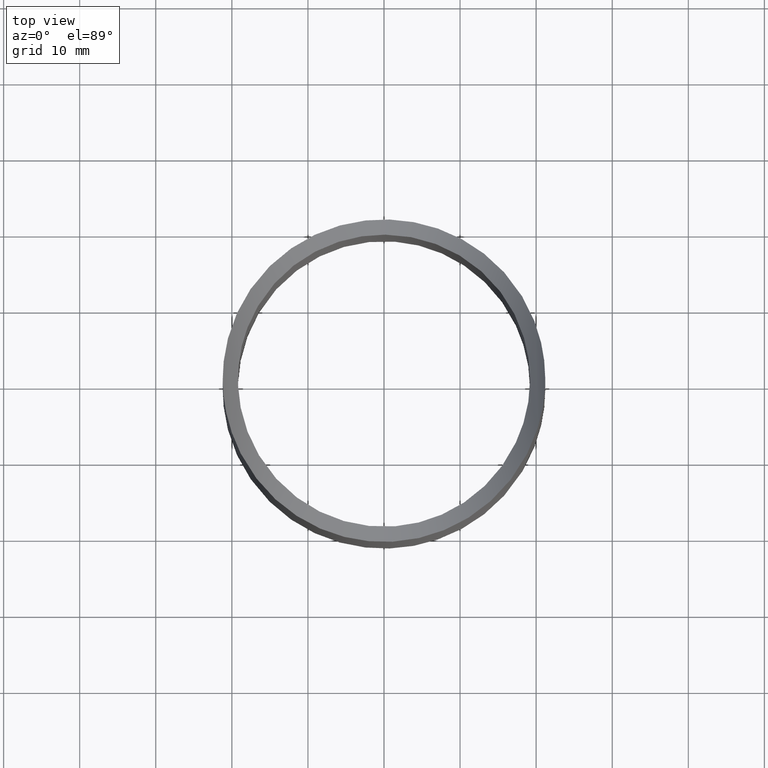
[diagram: clean part render]
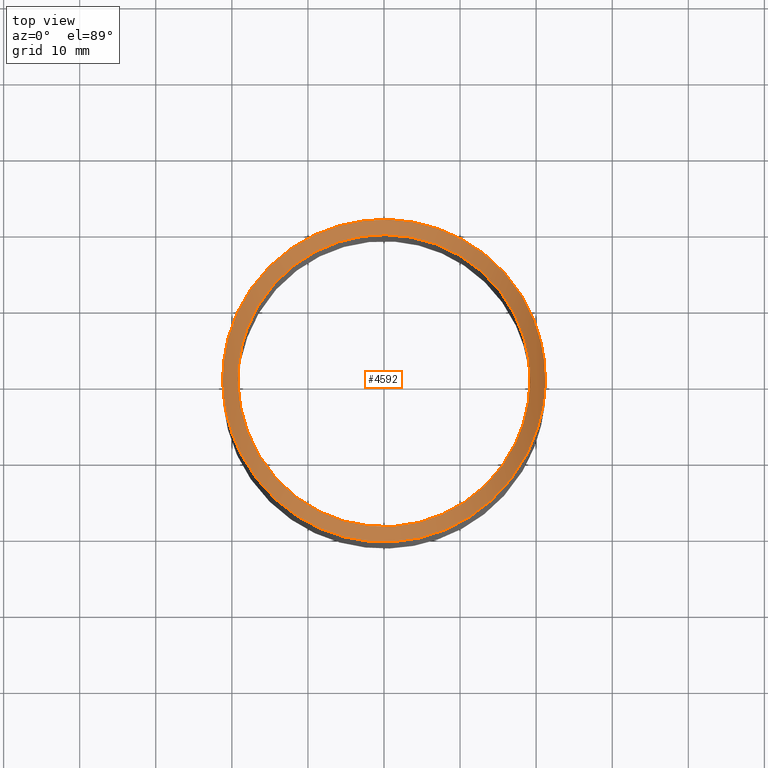
[diagram: same view with one face highlighted and labeled with its STEP entity id]
A machine part, top view. The second image highlights one B-rep face of the part: STEP entity #4592.
In plain terms, the highlighted cylindrical surface (partial cylindrical patch) has radius 24.15 mm, axis along (-0, 1, -0).
Its self-contained STEP definition (entity closure, byte-faithful):
#163 = CARTESIAN_POINT ( 'NONE',  ( -3.255958080950190237, -18.92481743305896202, 25.21821653817354303 ) ) ;
#204 = CARTESIAN_POINT ( 'NONE',  ( 6.482609521754965520, -18.08407111452975258, 25.87768013971219361 ) ) ;
#254 = CARTESIAN_POINT ( 'NONE',  ( -15.26203645178457613, -11.71076320460980469, 30.41280303271717145 ) ) ;
#270 = CARTESIAN_POINT ( 'NONE',  ( -18.92877723315593741, 9.635848647165380143, 34.12689449167132949 ) ) ;
#298 = CARTESIAN_POINT ( 'NONE',  ( 13.28753157040789468, -13.87213893877379434, 28.97772554639307074 ) ) ;
#311 = CARTESIAN_POINT ( 'NONE',  ( -18.30954737960177781, 10.76482312935650754, 33.36712507464898181 ) ) ;
#335 = CARTESIAN_POINT ( 'NONE',  ( 17.90880337583956461, -6.948946749652347599, 32.94444091350059978 ) ) ;
#381 = CARTESIAN_POINT ( 'NONE',  ( -13.29008748311628452, 13.86986159758600401, 28.97932688512530319 ) ) ;
#395 = CARTESIAN_POINT ( 'NONE',  ( -1.379351382647280300, 21.16843550293391374, 25.02773133158973096 ) ) ;
#427 = CARTESIAN_POINT ( 'NONE',  ( -2.718640566721775453, 19.01832373245417784, 25.14422486082669295 ) ) ;
#443 = CARTESIAN_POINT ( 'NONE',  ( 20.59421893871964571, 5.081957251331889580, 36.53320584653805270 ) ) ;
#477 = CARTESIAN_POINT ( 'NONE',  ( 13.25440064150450858, 13.90396366826683661, 28.95584296648186395 ) ) ;
#493 = CARTESIAN_POINT ( 'NONE',  ( -21.17139254519066682, -1.327900722634574704, 37.53032838118427605 ) ) ;
#520 = CARTESIAN_POINT ( 'NONE',  ( 16.58456793229646564, 9.693189742631007633, 31.59046298775079720 ) ) ;
#537 = CARTESIAN_POINT ( 'NONE',  ( 9.776366241319019323, -18.82411369512748323, 27.05708157620545151 ) ) ;
#570 = CARTESIAN_POINT ( 'NONE',  ( 19.02837230249243561, 2.644166875896658553, 34.27868836104758543 ) ) ;
#764 = CARTESIAN_POINT ( 'NONE',  ( -21.06282559943587884, -2.436221136448928792, 37.33537302850128015 ) ) ;
#806 = CARTESIAN_POINT ( 'NONE',  ( 11.57557648746820256, -17.77401718948303611, 27.94502558068056430 ) ) ;
#849 = CARTESIAN_POINT ( 'NONE',  ( 2.861955765926955664, -21.01963759934508147, 25.15820244223009894 ) ) ;
#1014 = CARTESIAN_POINT ( 'NONE',  ( 19.20000000000000995, -1.346712393426994447, 34.50136525132801779 ) ) ;
#1019 = CARTESIAN_POINT ( 'NONE',  ( 21.18705007545193908, -0.7651361944628329859, 37.55985221934160734 ) ) ;
#1196 = CARTESIAN_POINT ( 'NONE',  ( 11.43302474737128449, -15.43698605618202357, 27.87027088789773188 ) ) ;
#1245 = CARTESIAN_POINT ( 'NONE',  ( -13.25109797467948525, -13.90706630659891552, 28.95369606916847971 ) ) ;
#1291 = CARTESIAN_POINT ( 'NONE',  ( -18.49362913039033174, -5.198163359133904038, 33.61639585758521775 ) ) ;
#1304 = CARTESIAN_POINT ( 'NONE',  ( 21.04311487925438939, 2.600411042969253295, 37.30026941153323605 ) ) ;
#1332 = CARTESIAN_POINT ( 'NONE',  ( 7.090031377504277366, -17.85434781506717883, 26.05598190192093710 ) ) ;
#1351 = CARTESIAN_POINT ( 'NONE',  ( -16.04934571228516660, 13.91195018205657874, 31.06685218863818321 ) ) ;
#1360 = DIRECTION ( 'NONE',  ( 0.000000000000000000, 0.000000000000000000, 1.000000000000000000 ) ) ;
#1385 = CARTESIAN_POINT ( 'NONE',  ( 1.363781126240995123, -19.16317454119206332, 25.02930538705657426 ) ) ;
#1401 = CARTESIAN_POINT ( 'NONE',  ( 14.33064357019541823, 15.63693189086025370, 29.70180932424991838 ) ) ;
#1429 = CARTESIAN_POINT ( 'NONE',  ( -12.84493445951116719, 14.28329555711447263, 28.69225653415303512 ) ) ;
#1444 = CARTESIAN_POINT ( 'NONE',  ( -9.783719388593979716, 18.86114355684420474, 27.02669751896622685 ) ) ;
#1472 = CARTESIAN_POINT ( 'NONE',  ( 10.37756682919518880, 16.16549921756678998, 27.33601600772281870 ) ) ;
#1488 = CARTESIAN_POINT ( 'NONE',  ( 18.35738798289526841, 10.62389000726081711, 33.45083591808911905 ) ) ;
#1518 = CARTESIAN_POINT ( 'NONE',  ( 18.49976728379239788, 5.176419524179735276, 33.62371298614612414 ) ) ;
#1537 = CARTESIAN_POINT ( 'NONE',  ( -21.13600295169353060, 1.688561807819356719, 37.46692591776143644 ) ) ;
#1568 = CARTESIAN_POINT ( 'NONE',  ( 19.20000000000000995, 2.059984127722458425E-15, 34.50136525132801779 ) ) ;
#1583 = CARTESIAN_POINT ( 'NONE',  ( -3.875882088453081575, -20.84607472227184388, 25.31010850980709748 ) ) ;
#1612 = CARTESIAN_POINT ( 'NONE',  ( 1.267964607989610526, 19.16952229803326091, 25.02425750774572677 ) ) ;
#1794 = CARTESIAN_POINT ( 'NONE',  ( -1.646797548463641236, -21.14920743253038538, 25.04461009978417962 ) ) ;
#1834 = CARTESIAN_POINT ( 'NONE',  ( -21.19613358253339896, 0.5540781783344641553, 37.57647572910654787 ) ) ;
#1879 = CARTESIAN_POINT ( 'NONE',  ( -4.244829350413260372, -20.77400722764772922, 25.37311363479035009 ) ) ;
#2235 = CARTESIAN_POINT ( 'NONE',  ( 0.6982102987030192054, -19.19871781416463818, 25.00101937690090637 ) ) ;
#2279 = CARTESIAN_POINT ( 'NONE',  ( 5.251616885425025139, -18.47913348551918489, 25.56938045810047910 ) ) ;
#2324 = CARTESIAN_POINT ( 'NONE',  ( 11.91904472403094850, -15.06471645273509985, 28.13925289162920507 ) ) ;
#2341 = CARTESIAN_POINT ( 'NONE',  ( 9.307140707012017344, 19.06107999430647126, 26.85459706639172239 ) ) ;
#2372 = CARTESIAN_POINT ( 'NONE',  ( -5.199718337577949434, -18.52959265748502915, 25.53007122663376194 ) ) ;
#2420 = CARTESIAN_POINT ( 'NONE',  ( -19.16624718914798109, 1.314398449266423574, 34.45681745028024778 ) ) ;
#2436 = CARTESIAN_POINT ( 'NONE',  ( 20.81536095300337408, 4.035812705794620037, 36.90402268098335981 ) ) ;
#2461 = CARTESIAN_POINT ( 'NONE',  ( -11.92169305300573967, 15.06247350175057775, 28.14083905213118442 ) ) ;
#2479 = CARTESIAN_POINT ( 'NONE',  ( 19.77521756840306821, 7.669338922180779505, 35.28076052837283783 ) ) ;
#2510 = CARTESIAN_POINT ( 'NONE',  ( 0.6069152550272909341, 19.20186868889128817, 24.99851433671591394 ) ) ;
#2532 = CARTESIAN_POINT ( 'NONE',  ( -3.977638343958846079, 20.82676644983990144, 25.32699950302857772 ) ) ;
#2559 = CARTESIAN_POINT ( 'NONE',  ( -6.512315818788229294, 18.07344459770128609, 25.88594150482693124 ) ) ;
#2575 = CARTESIAN_POINT ( 'NONE',  ( -20.97635834696325929, 3.158545356204248922, 37.18151495239143856 ) ) ;
#2617 = CARTESIAN_POINT ( 'NONE',  ( 17.26894050692188287, -12.31449342644356726, 32.25960162156351174 ) ) ;
#2647 = B_SPLINE_CURVE_WITH_KNOTS ( 'NONE', 3,
 ( #9380, #1014, #5344, #10571, #12559, #8532, #3293, #10516, #335, #7501, #5428, #9566, #3343, #4421, #8445, #298, #7364, #2324, #1196, #6388, #11563, #1332, #204, #2279, #4332, #9480, #12514, #1385, #2235, #6338, #11608, #8395, #10476, #163, #9431, #2372, #7406, #11513, #5382, #12601, #6469, #4374, #10611, #3383, #1245, #6427, #254, #3470, #3424, #7453, #11647, #4473, #6519, #1291, #8494, #9520, #5474, #12651, #5515, #12696, #7542, #8574, #2420, #9615, #10652, #4513, #7578, #5555, #3519, #5641, #3598, #12826, #6562, #7627, #10874, #381, #1429, #2461, #11819, #9798, #7677, #12741, #2559, #11694, #3645, #6736, #427, #8659, #10737, #2649, #5602, #2510, #1612, #8617, #3558, #11779, #6695, #9657, #6645, #8791, #10784, #7724, #1472, #10693, #4645, #4552, #477, #10826, #11735, #5683, #520, #12774, #9704, #12908, #6606, #1518, #4599, #3685, #570, #8701, #9752, #1568 ),
 .UNSPECIFIED., .T., .F.,
 ( 4, 2, 2, 2, 2, 2, 2, 2, 2, 2, 2, 2, 2, 2, 2, 2, 2, 2, 2, 2, 2, 2, 2, 2, 2, 2, 2, 2, 2, 2, 2, 2, 2, 2, 2, 2, 2, 2, 2, 2, 2, 2, 2, 2, 2, 2, 2, 2, 2, 2, 2, 2, 2, 2, 2, 2, 2, 2, 2, 2, 4 ),
 ( 0.000000000000000000, 0.003974698482295022095, 0.004968373102868777619, 0.005962047723442533143, 0.007949396964590044190, 0.009936746205737555238, 0.01192409544688506629, 0.01589879392918008838, 0.01788614317032759943, 0.01987349241147511048, 0.02384819089377012563, 0.02583554013491763668, 0.02782288937606514773, 0.02981023861721265530, 0.03179758785836016982, 0.03378493709950767393, 0.03477861172008143292, 0.03577228634065519192, 0.03974698482295021401, 0.04173433406409772506, 0.04372168330524522917, 0.04570903254639275409, 0.04769638178754027208, 0.05167108026983530805, 0.05365842951098282604, 0.05564577875213034402, 0.05763312799327787589, 0.05962047723442540081, 0.06160782647557291880, 0.06260150109614667779, 0.06359517571672043679, 0.06558252495786795477, 0.06657619957844171377, 0.06756987419901545888, 0.07154457268131049485, 0.07353192192245801284, 0.07551927116360554471, 0.07949396964590058068, 0.08148131888704811254, 0.08346866812819564441, 0.08744336661049068038, 0.08943071585163821224, 0.09141806509278573023, 0.09340541433393324822, 0.09439908895450700721, 0.09539276357508076620, 0.09738011281622829807, 0.09837378743680205706, 0.09936746205737580218, 0.1033421605396708381, 0.1053295097808183423, 0.1073168590219658602, 0.1093042082631133782, 0.1112915575042608823, 0.1152662559865559183, 0.1172536052277034363, 0.1192409544688509404, 0.1212283037099984584, 0.1232156529511459625, 0.1252030021922934666, 0.1271903514334409846 ),
 .UNSPECIFIED. ) ;
#2649 = CARTESIAN_POINT ( 'NONE',  ( -0.7204800247264818713, 19.18937357302040425, 25.00845003320503679 ) ) ;
#2853 = CARTESIAN_POINT ( 'NONE',  ( -11.20650900769450686, -18.00919104853148411, 27.74720752538118163 ) ) ;
#2898 = CARTESIAN_POINT ( 'NONE',  ( 14.26758304632109109, -15.73462341832112088, 29.63000989669030005 ) ) ;
#2941 = CARTESIAN_POINT ( 'NONE',  ( 18.35259929000589096, -10.69178739157260871, 33.41716637868228190 ) ) ;
#3293 = CARTESIAN_POINT ( 'NONE',  ( 18.40551820009558526, -5.474938991681098877, 33.51413549127038749 ) ) ;
#3343 = CARTESIAN_POINT ( 'NONE',  ( 16.27824432263802379, -10.19867580380512173, 31.30522275899706841 ) ) ;
#3383 = CARTESIAN_POINT ( 'NONE',  ( -12.80720717478307158, -14.31733778815052105, 28.66848642564543326 ) ) ;
#3401 = CARTESIAN_POINT ( 'NONE',  ( 18.02703324573771582, 11.17478347359660873, 33.07151591960013803 ) ) ;
#3424 = CARTESIAN_POINT ( 'NONE',  ( -16.57788926204874258, -9.704533056861706086, 31.58416673208805392 ) ) ;
#3439 = CARTESIAN_POINT ( 'NONE',  ( 0.8570938160425972674, 21.19576360719491959, 25.00371889231641376 ) ) ;
#3470 = CARTESIAN_POINT ( 'NONE',  ( -16.26396012753206222, -10.22162090094121289, 31.29212911118361973 ) ) ;
#3519 = CARTESIAN_POINT ( 'NONE',  ( -18.15465230008537389, 6.368417433403480210, 33.20865288073045463 ) ) ;
#3531 = CARTESIAN_POINT ( 'NONE',  ( 13.32389046653464426, 16.50317929767390623, 28.99873680058485448 ) ) ;
#3558 = CARTESIAN_POINT ( 'NONE',  ( 2.584810328228691390, 19.02811074316160500, 25.13645067859325977 ) ) ;
#3574 = CARTESIAN_POINT ( 'NONE',  ( -14.20856944367890229, 15.74784103867825991, 29.61246971191928168 ) ) ;
#3598 = CARTESIAN_POINT ( 'NONE',  ( -17.16841745299955591, 8.616805603504106514, 32.16090196336465112 ) ) ;
#3617 = CARTESIAN_POINT ( 'NONE',  ( 20.29439568384519177, -6.139549580194639589, 36.05817013806716886 ) ) ;
#3645 = CARTESIAN_POINT ( 'NONE',  ( -4.651210577919512978, 18.63960173529629216, 25.44324617549107970 ) ) ;
#3660 = CARTESIAN_POINT ( 'NONE',  ( -3.134448869397676418, -20.97037251875283204, 25.20134411886764525 ) ) ;
#3685 = CARTESIAN_POINT ( 'NONE',  ( 18.92773479330212538, 3.286046076691218065, 34.14975218828460157 ) ) ;
#3883 = CARTESIAN_POINT ( 'NONE',  ( -21.01685719160357735, -2.804839704732406069, 37.25350971382740539 ) ) ;
#3934 = CARTESIAN_POINT ( 'NONE',  ( -17.38037110746649461, -12.15634875530774472, 32.37456891561282646 ) ) ;
#3976 = CARTESIAN_POINT ( 'NONE',  ( -7.428390811851920184, -19.90728424505650196, 26.12846359776445837 ) ) ;
#4332 = CARTESIAN_POINT ( 'NONE',  ( 4.624399148999452258, -18.64624036565931320, 25.43802375864946086 ) ) ;
#4374 = CARTESIAN_POINT ( 'NONE',  ( -11.38903002107075046, -15.46952057081156084, 27.84664880780972851 ) ) ;
#4421 = CARTESIAN_POINT ( 'NONE',  ( 15.28384674677678312, -11.68164946124940862, 30.43087126346166826 ) ) ;
#4473 = CARTESIAN_POINT ( 'NONE',  ( -17.89847223302856349, -6.975515949018377349, 32.93300996239963041 ) ) ;
#4513 = CARTESIAN_POINT ( 'NONE',  ( -18.92239781040531810, 3.269621082421527714, 34.14426862029864651 ) ) ;
#4528 = CARTESIAN_POINT ( 'NONE',  ( -2.875685406383693188, 21.00737035516542051, 25.16893772533690310 ) ) ;
#4552 = CARTESIAN_POINT ( 'NONE',  ( 12.80958895537919595, 14.31524180210327835, 28.66995730333042758 ) ) ;
#4568 = CARTESIAN_POINT ( 'NONE',  ( 21.19999999999999218, -1.165517335421917267E-15, 37.58356148159685262 ) ) ;
#4592 = ADVANCED_FACE ( 'NONE', ( #11759, #9501 ), #7558, .F. ) ;
#4599 = CARTESIAN_POINT ( 'NONE',  ( 18.66408245944930755, 4.550743804104329548, 33.82294533299602080 ) ) ;
#4615 = CARTESIAN_POINT ( 'NONE',  ( -14.68694656133646248, 15.30210980942055699, 29.97042990981162802 ) ) ;
#4616 = ORIENTED_EDGE ( 'NONE', *, *, #7691, .T. ) ;
#4645 = CARTESIAN_POINT ( 'NONE',  ( 11.87555162268125741, 15.09910562634391518, 28.11457769094676351 ) ) ;
#4664 = CARTESIAN_POINT ( 'NONE',  ( -20.84335338306961205, -3.888697776966783426, 36.95177541651901265 ) ) ;
#4714 = CARTESIAN_POINT ( 'NONE',  ( 9.146863275391043047, -19.13856882639603540, 26.78829395330530261 ) ) ;
#4935 = CARTESIAN_POINT ( 'NONE',  ( -20.45541735194242960, -5.611173856344452204, 36.30723599468177554 ) ) ;
#4985 = CARTESIAN_POINT ( 'NONE',  ( 10.99019997192858256, -18.14221865893225427, 27.63512407793474068 ) ) ;
#5027 = CARTESIAN_POINT ( 'NONE',  ( -18.43835679299217034, -10.54151119859166208, 33.51897155093636371 ) ) ;
#5201 = CARTESIAN_POINT ( 'NONE',  ( 20.65678568497506618, -4.781809977681583668, 36.63836350674345255 ) ) ;
#5344 = CARTESIAN_POINT ( 'NONE',  ( 19.06031456348139486, -2.650868228963062290, 34.31406826229878249 ) ) ;
#5382 = CARTESIAN_POINT ( 'NONE',  ( -8.760153950930892108, -17.09650181637034549, 26.63704350349036787 ) ) ;
#5428 = CARTESIAN_POINT ( 'NONE',  ( 17.16719019093399723, -8.619411775009757193, 32.15962207457139499 ) ) ;
#5474 = CARTESIAN_POINT ( 'NONE',  ( -19.02529710796761719, -2.666946167577797233, 34.27474230769715291 ) ) ;
#5488 = CARTESIAN_POINT ( 'NONE',  ( 11.70097173117910216, 17.69122308532080368, 28.01436057573138072 ) ) ;
#5515 = CARTESIAN_POINT ( 'NONE',  ( -19.15521536426648197, -1.352689336175176615, 34.44282226099616651 ) ) ;
#5523 = CARTESIAN_POINT ( 'NONE',  ( -5.059804035448612680, 20.60052458868202407, 25.52461701857541598 ) ) ;
#5555 = CARTESIAN_POINT ( 'NONE',  ( -18.53313602878473532, 5.181376464548119287, 33.66056420286724915 ) ) ;
#5572 = CARTESIAN_POINT ( 'NONE',  ( 20.99518966925269225, 2.962050479155550420, 37.21528062210827414 ) ) ;
#5579 = DIRECTION ( 'NONE',  ( -0.000000000000000000, 1.000000000000000000, -0.000000000000000000 ) ) ;
#5590 = CARTESIAN_POINT ( 'NONE',  ( 21.19999999999999929, 0.000000000000000000, 37.58356148159686683 ) ) ;
#5602 = CARTESIAN_POINT ( 'NONE',  ( -0.3881891571719977563, 19.19894101236592476, 25.00084192676886730 ) ) ;
#5617 = CARTESIAN_POINT ( 'NONE',  ( 3.084421250912809942, 20.98770154349920958, 25.18618267936977162 ) ) ;
#5641 = CARTESIAN_POINT ( 'NONE',  ( -17.43518533469062959, 8.064201605289705199, 32.43591389355976418 ) ) ;
#5655 = EDGE_CURVE ( 'NONE', #8568, #8568, #7539, .T. ) ;
#5657 = CARTESIAN_POINT ( 'NONE',  ( -16.86133393032115890, 12.91574079727568147, 31.82850802484505337 ) ) ;
#5677 = CARTESIAN_POINT ( 'NONE',  ( 19.20000000000000284, 0.000000000000000000, 34.50136525132801779 ) ) ;
#5683 = CARTESIAN_POINT ( 'NONE',  ( 16.27043166596845580, 10.21136784205024206, 31.29801529211051303 ) ) ;
#5701 = CARTESIAN_POINT ( 'NONE',  ( -10.00391576498438972, -18.69453692488314900, 27.16679903627293058 ) ) ;
#5747 = CARTESIAN_POINT ( 'NONE',  ( 20.39193468106632423, -5.807951388633584955, 36.21088361584384785 ) ) ;
#5960 = CARTESIAN_POINT ( 'NONE',  ( 5.052017920772577497, -20.60256207620232516, 25.52284085383190515 ) ) ;
#6006 = CARTESIAN_POINT ( 'NONE',  ( -20.62931908667947667, -4.937671174590857248, 36.59086201277335704 ) ) ;
#6045 = CARTESIAN_POINT ( 'NONE',  ( 16.06516379777914594, -13.84816061437718560, 31.10990615289966499 ) ) ;
#6210 = CARTESIAN_POINT ( 'NONE',  ( 21.19999999999999218, -1.165517335421917267E-15, 37.58356148159685262 ) ) ;
#6338 = CARTESIAN_POINT ( 'NONE',  ( -0.6258165461448734757, -19.20121394546993443, 24.99903487629114807 ) ) ;
#6388 = CARTESIAN_POINT ( 'NONE',  ( 9.923446632427612712, -16.48222013032257749, 27.10410671423836249 ) ) ;
#6427 = CARTESIAN_POINT ( 'NONE',  ( -14.51158351227131327, -12.62878882273154169, 29.81930927331681858 ) ) ;
#6469 = CARTESIAN_POINT ( 'NONE',  ( -10.37863266359358505, -16.16477823992031304, 27.33654633321825855 ) ) ;
#6486 = CARTESIAN_POINT ( 'NONE',  ( 1.600552284528295566, 21.15267129505330956, 25.04156937056848875 ) ) ;
#6519 = CARTESIAN_POINT ( 'NONE',  ( -18.11397489362586199, -6.396806568418029748, 33.17529844977504894 ) ) ;
#6534 = CARTESIAN_POINT ( 'NONE',  ( -10.98734972168234592, 18.18173473906200499, 27.60533894899644380 ) ) ;
#6562 = CARTESIAN_POINT ( 'NONE',  ( -16.28481645854532900, 10.18808115102786616, 31.31125849341002265 ) ) ;
#6576 = CARTESIAN_POINT ( 'NONE',  ( 20.00715471155248792, 7.043729142430194656, 35.61943515223384082 ) ) ;
#6606 = CARTESIAN_POINT ( 'NONE',  ( 18.12073782222542562, 6.377740150159312726, 33.18297652130451070 ) ) ;
#6621 = CARTESIAN_POINT ( 'NONE',  ( 21.19999999999999218, 0.7607316018210188435, 37.58356148159684551 ) ) ;
#6645 = CARTESIAN_POINT ( 'NONE',  ( 6.420707830273364891, 18.13977028926569091, 25.83628793513053878 ) ) ;
#6662 = CARTESIAN_POINT ( 'NONE',  ( -20.54646411576972298, 5.272054584498059526, 36.45531200607298672 ) ) ;
#6695 = CARTESIAN_POINT ( 'NONE',  ( 3.569810752822787148, 18.86811756726812561, 25.26304412841745162 ) ) ;
#6713 = CARTESIAN_POINT ( 'NONE',  ( -20.05044987211626406, -6.920175649073071256, 35.68374045013990781 ) ) ;
#6736 = CARTESIAN_POINT ( 'NONE',  ( -3.370880634393777608, 18.91310858741312018, 25.22760253476487335 ) ) ;
#6755 = CARTESIAN_POINT ( 'NONE',  ( -6.057539750127689970, -20.37040628734392200, 25.72541600823642227 ) ) ;
#6976 = CARTESIAN_POINT ( 'NONE',  ( 7.838284737744062980, -19.71068788427852425, 26.29672239114204757 ) ) ;
#7018 = CARTESIAN_POINT ( 'NONE',  ( 0.5992993401474279169, -21.20478202979933968, 24.99580213603888978 ) ) ;
#7061 = CARTESIAN_POINT ( 'NONE',  ( 20.99808804751278402, -3.012252433823545683, 37.21980758918370213 ) ) ;
#7193 = CARTESIAN_POINT ( 'NONE',  ( 21.17929872054909879, -0.9558596785980422172, 37.54567905352975998 ) ) ;
#7364 = CARTESIAN_POINT ( 'NONE',  ( 12.84787325281730119, -14.28080746366603648, 28.69401617949156602 ) ) ;
#7406 = CARTESIAN_POINT ( 'NONE',  ( -6.428818667088289196, -18.13677263030221454, 25.83861817969178531 ) ) ;
#7453 = CARTESIAN_POINT ( 'NONE',  ( -17.15475403940845212, -8.644003012717661250, 32.14707893836377650 ) ) ;
#7455 = ORIENTED_EDGE ( 'NONE', *, *, #5655, .T. ) ;
#7472 = CARTESIAN_POINT ( 'NONE',  ( 14.81171923180426475, 15.18147543748701089, 30.06661201293681884 ) ) ;
#7501 = CARTESIAN_POINT ( 'NONE',  ( 17.43089603261612908, -8.073225054717230620, 32.43146994617548273 ) ) ;
#7515 = CARTESIAN_POINT ( 'NONE',  ( -19.94419146322033498, 7.219722584351009331, 35.52663442060294585 ) ) ;
#7539 = B_SPLINE_CURVE_WITH_KNOTS ( 'NONE', 3,
 ( #4568, #6621, #9586, #1304, #5572, #10582, #2436, #443, #12846, #6576, #2479, #11621, #11661, #1488, #3401, #7555, #9722, #7472, #1401, #3531, #9631, #5488, #7646, #9537, #2341, #11751, #12755, #11795, #5617, #6486, #3439, #10668, #395, #10755, #4528, #11710, #2532, #5523, #7596, #12710, #8632, #1444, #6534, #12667, #9675, #3574, #4615, #1351, #5657, #311, #270, #8508, #7515, #8542, #6662, #13136, #2575, #11838, #1537, #10800, #1834, #12100, #493, #764, #3883, #10085, #4664, #6006, #4935, #6713, #7741, #12887, #5027, #3934, #8717, #13177, #9026, #8046, #7957, #9771, #2853, #10129, #5701, #8759, #10040, #3976, #6755, #1879, #1583, #3660, #11111, #1794, #11074, #7018, #9075, #849, #9814, #5960, #7694, #8987, #6976, #4714, #537, #4985, #806, #12194, #2898, #8004, #6045, #12143, #2617, #2941, #10843, #11877, #11155, #3617, #5747, #12921, #5201, #10213, #7061, #12333, #12424, #7193, #1019, #12281, #9127, #6210 ),
 .UNSPECIFIED., .T., .F.,
 ( 4, 2, 2, 2, 2, 2, 2, 2, 2, 2, 2, 2, 2, 2, 2, 2, 2, 2, 2, 2, 2, 2, 2, 2, 2, 2, 2, 2, 2, 2, 2, 2, 2, 2, 2, 2, 2, 2, 2, 2, 2, 2, 2, 2, 2, 2, 2, 2, 2, 2, 2, 2, 2, 2, 2, 2, 2, 2, 2, 2, 2, 2, 2, 4 ),
 ( 0.000000000000000000, 0.002241287828992627809, 0.003361931743488943015, 0.004482575657985257353, 0.006723863486977876489, 0.008965151315970497359, 0.01120643914496311476, 0.01344772697395573216, 0.01793030263194097043, 0.02017159046093358957, 0.02241287828992620870, 0.02465416611891882784, 0.02689545394791144697, 0.03137802960589668871, 0.03361931743488930785, 0.03586060526388192699, 0.03810189309287454612, 0.03922253700737084875, 0.04034318092186715832, 0.04258446875085977745, 0.04482575657985239659, 0.04930833223783762098, 0.05154962006683024706, 0.05379090789582286619, 0.05827348355380809058, 0.06275605921179332192, 0.06499734704078592717, 0.06723863486977853243, 0.06947992269877115157, 0.07060056661326745420, 0.07172121052776375683, 0.07396249835675636208, 0.07508314227125266471, 0.07620378618574895346, 0.07844507401474155872, 0.08068636184373415010, 0.08516893750171937449, 0.08741022533071196587, 0.08965151315970457113, 0.09413408881768976777, 0.09637537664668238691, 0.09749602056117870341, 0.09861666447567500604, 0.1030992401336602443, 0.1042198840481565608, 0.1053405279626528496, 0.1075818157916454548, 0.1098231036206380878, 0.1120643914496306931, 0.1143056792786232845, 0.1165469671076158897, 0.1187882549366084811, 0.1210295427656010725, 0.1255121184235862830, 0.1277534062525788883, 0.1299946940815714935, 0.1344772697395567040, 0.1367185575685493093, 0.1378392014830456258, 0.1389598453975419146, 0.1412011332265345198, 0.1423217771410308086, 0.1428820990982789807, 0.1434424210555271251 ),
 .UNSPECIFIED. ) ;
#7542 = CARTESIAN_POINT ( 'NONE',  ( -19.19976032632891361, -0.3471800544704942704, 34.50105111069343167 ) ) ;
#7555 = CARTESIAN_POINT ( 'NONE',  ( 16.96650338785485346, 12.77562585898297165, 31.93266644754966777 ) ) ;
#7558 = CYLINDRICAL_SURFACE ( 'NONE', #11289, 24.15000000000000568 ) ;
#7578 = CARTESIAN_POINT ( 'NONE',  ( -18.86353432675474195, 3.593370252826213029, 34.07019061868555099 ) ) ;
#7596 = CARTESIAN_POINT ( 'NONE',  ( -5.765700953092395054, 20.41380111013800303, 25.68739766642772082 ) ) ;
#7627 = CARTESIAN_POINT ( 'NONE',  ( -15.29429276720969533, 11.66762989062603140, 30.43955128115160136 ) ) ;
#7646 = CARTESIAN_POINT ( 'NONE',  ( 11.12876944867946527, 18.05727372709984380, 27.70671522967704448 ) ) ;
#7677 = CARTESIAN_POINT ( 'NONE',  ( -8.870002749926454655, 17.07581724350661645, 26.65424112084228270 ) ) ;
#7691 = EDGE_CURVE ( 'NONE', #12106, #12106, #2647, .T. ) ;
#7694 = CARTESIAN_POINT ( 'NONE',  ( 5.762301184145830923, -20.41495202547941901, 25.68640025201506205 ) ) ;
#7724 = CARTESIAN_POINT ( 'NONE',  ( 9.851559161090065686, 16.49178307897620854, 27.09276472529576196 ) ) ;
#7741 = CARTESIAN_POINT ( 'NONE',  ( -19.81796637703257957, -7.558585585020083819, 35.34193712264892184 ) ) ;
#7957 = CARTESIAN_POINT ( 'NONE',  ( -13.41327811795208724, -16.47184304281853073, 29.02748098906725360 ) ) ;
#8004 = CARTESIAN_POINT ( 'NONE',  ( 15.63389383173102409, -14.33342034139705312, 30.73406332649879147 ) ) ;
#8046 = CARTESIAN_POINT ( 'NONE',  ( -14.40607568455914489, -15.60842448588200604, 29.73192576045749647 ) ) ;
#8395 = CARTESIAN_POINT ( 'NONE',  ( -2.272163508927350861, -19.06794498319457176, 25.10486304047646300 ) ) ;
#8445 = CARTESIAN_POINT ( 'NONE',  ( 14.53893462062065112, -12.59675815367749863, 29.84019711228946292 ) ) ;
#8494 = CARTESIAN_POINT ( 'NONE',  ( -18.65832575219401690, -4.574283389448914328, 33.81592184671554691 ) ) ;
#8508 = CARTESIAN_POINT ( 'NONE',  ( -19.70897052989556286, 7.837316334376738247, 35.18678288087188122 ) ) ;
#8532 = CARTESIAN_POINT ( 'NONE',  ( 18.49318556519853374, -5.171462781292565758, 33.61807819401102648 ) ) ;
#8542 = CARTESIAN_POINT ( 'NONE',  ( -20.36288625874305680, 5.937005181913790786, 36.16078424057156582 ) ) ;
#8568 = VERTEX_POINT ( 'NONE', #5590 ) ;
#8574 = CARTESIAN_POINT ( 'NONE',  ( -19.20046507156175863, 0.6538068143722257641, 34.50197482130455739 ) ) ;
#8617 = CARTESIAN_POINT ( 'NONE',  ( 2.256037318895509181, 19.06986826019592129, 25.10333771854873675 ) ) ;
#8632 = CARTESIAN_POINT ( 'NONE',  ( -7.827907481127834188, 19.71471125336513452, 26.29324697376245012 ) ) ;
#8659 = CARTESIAN_POINT ( 'NONE',  ( -1.720803456266133846, 19.12565675985445068, 25.05907282594136731 ) ) ;
#8701 = CARTESIAN_POINT ( 'NONE',  ( 19.16449714391507086, 1.338887661725589595, 34.45452751470801189 ) ) ;
#8717 = CARTESIAN_POINT ( 'NONE',  ( -17.00333266243377395, -12.67859107400535912, 31.99141052322285361 ) ) ;
#8759 = CARTESIAN_POINT ( 'NONE',  ( -9.377422683829406580, -19.01651874759216554, 26.89234066544022994 ) ) ;
#8791 = CARTESIAN_POINT ( 'NONE',  ( 8.183186969679855594, 17.38058226344925927, 26.42026197157994716 ) ) ;
#8987 = CARTESIAN_POINT ( 'NONE',  ( 7.154830645487482599, -19.96954630365517147, 26.07288955469422831 ) ) ;
#9026 = CARTESIAN_POINT ( 'NONE',  ( -15.76577616875666621, -14.18836793598355506, 30.84682178562772137 ) ) ;
#9075 = CARTESIAN_POINT ( 'NONE',  ( 1.351634497376328126, -21.17047566304135131, 25.02594095006732999 ) ) ;
#9127 = CARTESIAN_POINT ( 'NONE',  ( 21.19999999999999218, -0.1901829004552480495, 37.58356148159685262 ) ) ;
#9380 = CARTESIAN_POINT ( 'NONE',  ( 19.20000000000000995, 2.059984127722458425E-15, 34.50136525132801779 ) ) ;
#9431 = CARTESIAN_POINT ( 'NONE',  ( -3.584023900688855679, -18.86541020908226329, 25.26518268737739703 ) ) ;
#9458 = EDGE_LOOP ( 'NONE', ( #7455 ) ) ;
#9480 = CARTESIAN_POINT ( 'NONE',  ( 3.345432641899678927, -18.91759571673214424, 25.22405247021235652 ) ) ;
#9501 = FACE_OUTER_BOUND ( 'NONE', #9458, .T. ) ;
#9520 = CARTESIAN_POINT ( 'NONE',  ( -18.92355857670020214, -3.310002899722421343, 34.14446757091845086 ) ) ;
#9537 = CARTESIAN_POINT ( 'NONE',  ( 9.932899202193427257, 18.74172236845739903, 27.12725074787230284 ) ) ;
#9566 = CARTESIAN_POINT ( 'NONE',  ( 16.58992556518728989, -9.684061551870806639, 31.59552106036362673 ) ) ;
#9586 = CARTESIAN_POINT ( 'NONE',  ( 21.15925873928341261, 1.505010053001367698, 37.50811591850236937 ) ) ;
#9615 = CARTESIAN_POINT ( 'NONE',  ( -19.06507694431928357, 2.295867974628471586, 34.32608765217788260 ) ) ;
#9631 = CARTESIAN_POINT ( 'NONE',  ( 12.79854085659568064, 16.91417942586903678, 28.66036005029366862 ) ) ;
#9636 = CARTESIAN_POINT ( 'NONE',  ( -8.486802318091153971E-15, -21.19999999999999929, 49.14999999999999858 ) ) ;
#9657 = CARTESIAN_POINT ( 'NONE',  ( 5.189299040029740517, 18.53272038759255125, 25.52761592422201176 ) ) ;
#9675 = CARTESIAN_POINT ( 'NONE',  ( -13.19870381461336528, 16.60337798851292845, 28.91654372066829382 ) ) ;
#9704 = CARTESIAN_POINT ( 'NONE',  ( 17.42595595449417445, 8.083972867393555362, 32.42629892259218849 ) ) ;
#9722 = CARTESIAN_POINT ( 'NONE',  ( 16.16775112329284525, 13.77464031684856671, 31.17259144699612250 ) ) ;
#9752 = CARTESIAN_POINT ( 'NONE',  ( 19.20000000000000995, 0.6733561967135001103, 34.50136525132801779 ) ) ;
#9771 = CARTESIAN_POINT ( 'NONE',  ( -11.77674396363667952, -17.64079681843034919, 28.05656199386481831 ) ) ;
#9798 = CARTESIAN_POINT ( 'NONE',  ( -9.944317383198667315, 16.46895857811898267, 27.11395854173954234 ) ) ;
#9814 = CARTESIAN_POINT ( 'NONE',  ( 3.602050574966647822, -20.90487217925429420, 25.25877219468317136 ) ) ;
#10040 = CARTESIAN_POINT ( 'NONE',  ( -9.055718434051099663, -19.17189410041115138, 26.75941458075507384 ) ) ;
#10085 = CARTESIAN_POINT ( 'NONE',  ( -20.90685473131000549, -3.532539769826045006, 37.06123692906679423 ) ) ;
#10129 = CARTESIAN_POINT ( 'NONE',  ( -10.30975277606171403, -18.52749846274448942, 27.30870390385972257 ) ) ;
#10213 = CARTESIAN_POINT ( 'NONE',  ( 20.88157022807383711, -3.730151578770625864, 37.01460156782884070 ) ) ;
#10476 = CARTESIAN_POINT ( 'NONE',  ( -2.600458692949035200, -19.02597152541186531, 25.13814590093218726 ) ) ;
#10516 = CARTESIAN_POINT ( 'NONE',  ( 18.12302669211721096, -6.370881589193591488, 33.18560711726217249 ) ) ;
#10571 = CARTESIAN_POINT ( 'NONE',  ( 18.72920077870019995, -4.238184345067176118, 33.90366729988249261 ) ) ;
#10582 = CARTESIAN_POINT ( 'NONE',  ( 20.88149335484289537, 3.678990019096605835, 37.01745075639204430 ) ) ;
#10611 = CARTESIAN_POINT ( 'NONE',  ( -11.87433134676853363, -15.10003218622290433, 28.11390699342115695 ) ) ;
#10652 = CARTESIAN_POINT ( 'NONE',  ( -19.02302625232753286, 2.621456297767518429, 34.27204364375795365 ) ) ;
#10668 = CARTESIAN_POINT ( 'NONE',  ( -0.6328581008026483712, 21.20364344460251615, 24.99680162452549581 ) ) ;
#10693 = CARTESIAN_POINT ( 'NONE',  ( 11.38956874509834272, 15.46916229303460355, 27.84691302392030821 ) ) ;
#10737 = CARTESIAN_POINT ( 'NONE',  ( -1.386257875970316578, 19.15279192943613396, 25.03751743667612928 ) ) ;
#10755 = CARTESIAN_POINT ( 'NONE',  ( -2.501427200603759449, 21.05526489811396829, 25.12696207914109081 ) ) ;
#10784 = CARTESIAN_POINT ( 'NONE',  ( 8.756019969652232504, 17.09866197453810344, 26.63540561859562317 ) ) ;
#10800 = CARTESIAN_POINT ( 'NONE',  ( -21.18264441055352165, 0.9367163545436431038, 37.55170630820558131 ) ) ;
#10826 = CARTESIAN_POINT ( 'NONE',  ( 14.51671477888237938, 12.62308837981322007, 29.82307705121687391 ) ) ;
#10843 = CARTESIAN_POINT ( 'NONE',  ( 18.96977030825058819, -9.556326872388803295, 34.17864872690723388 ) ) ;
#10874 = CARTESIAN_POINT ( 'NONE',  ( -14.54935027884809706, 12.58548174062805813, 29.84769901469160658 ) ) ;
#11074 = CARTESIAN_POINT ( 'NONE',  ( -0.8999169650052972758, -21.19415226156729304, 25.00513339016800884 ) ) ;
#11111 = CARTESIAN_POINT ( 'NONE',  ( -2.763046046473146777, -21.02250712551965961, 25.15566957285883731 ) ) ;
#11155 = CARTESIAN_POINT ( 'NONE',  ( 19.98206215831096699, -7.115016007147703547, 35.58225467785896257 ) ) ;
#11289 = AXIS2_PLACEMENT_3D ( 'NONE', #9636, #5579, #1360 ) ;
#11513 = CARTESIAN_POINT ( 'NONE',  ( -8.188589004868944699, -17.37800528926538846, 26.42223189431120645 ) ) ;
#11563 = CARTESIAN_POINT ( 'NONE',  ( 8.842843658691549535, -17.09003333435880023, 26.64343465960358159 ) ) ;
#11608 = CARTESIAN_POINT ( 'NONE',  ( -1.285653039379484275, -19.16830998904389460, 25.02522124626804256 ) ) ;
#11621 = CARTESIAN_POINT ( 'NONE',  ( 19.25834572351406493, 8.887863037567727886, 34.57155174949588883 ) ) ;
#11647 = CARTESIAN_POINT ( 'NONE',  ( -17.41887507145833780, -8.099130958098612609, 32.41892515703035116 ) ) ;
#11661 = CARTESIAN_POINT ( 'NONE',  ( 18.97254326586879358, 9.481736890763244219, 34.20008199186212039 ) ) ;
#11694 = CARTESIAN_POINT ( 'NONE',  ( -5.279293763810129825, 18.47129433215802408, 25.57552795191653061 ) ) ;
#11710 = CARTESIAN_POINT ( 'NONE',  ( -3.613022005524567870, 20.89318663543611265, 25.26889897083148284 ) ) ;
#11735 = CARTESIAN_POINT ( 'NONE',  ( 15.26791739947550575, 11.70327379382455391, 30.41755710769491117 ) ) ;
#11751 = CARTESIAN_POINT ( 'NONE',  ( 7.355998353420197589, 19.93388680068090579, 26.10540782151363004 ) ) ;
#11759 = FACE_BOUND ( 'NONE', #12488, .T. ) ;
#11779 = CARTESIAN_POINT ( 'NONE',  ( 3.241179921734096414, 18.92736103110750889, 25.21620489434448942 ) ) ;
#11795 = CARTESIAN_POINT ( 'NONE',  ( 3.828703173773328583, 20.86444194102674743, 25.29415204452525856 ) ) ;
#11819 = CARTESIAN_POINT ( 'NONE',  ( -11.44176462236667113, 15.43032836794975360, 27.87508425002936718 ) ) ;
#11838 = CARTESIAN_POINT ( 'NONE',  ( -21.10295424153486010, 2.059448189816758035, 37.40711882720225390 ) ) ;
#11877 = CARTESIAN_POINT ( 'NONE',  ( 19.74765873688392759, -7.739758821920959875, 35.24154086413228981 ) ) ;
#12100 = CARTESIAN_POINT ( 'NONE',  ( -21.20554532945918780, -0.5806661566480848524, 37.59372383202575207 ) ) ;
#12106 = VERTEX_POINT ( 'NONE', #5677 ) ;
#12143 = CARTESIAN_POINT ( 'NONE',  ( 16.88200995086582168, -12.83973443144087412, 31.87191521375912373 ) ) ;
#12194 = CARTESIAN_POINT ( 'NONE',  ( 13.26122689838577884, -16.59694229147575228, 28.92496586617463805 ) ) ;
#12281 = CARTESIAN_POINT ( 'NONE',  ( 21.19740071756693922, -0.3830497548331260327, 37.57879352461026201 ) ) ;
#12333 = CARTESIAN_POINT ( 'NONE',  ( 21.11770560777527095, -1.902853503920015399, 37.43370011411939657 ) ) ;
#12424 = CARTESIAN_POINT ( 'NONE',  ( 21.14836757930289934, -1.527087688503404816, 37.48934459721699142 ) ) ;
#12488 = EDGE_LOOP ( 'NONE', ( #4616 ) ) ;
#12514 = CARTESIAN_POINT ( 'NONE',  ( 2.693690987033217965, -19.02186074817231898, 25.14142160731825726 ) ) ;
#12559 = CARTESIAN_POINT ( 'NONE',  ( 18.65490721349695136, -4.553721170974490029, 33.81269436334911660 ) ) ;
#12601 = CARTESIAN_POINT ( 'NONE',  ( -9.853547704664942231, -16.49055090750630725, 27.09368332904067955 ) ) ;
#12651 = CARTESIAN_POINT ( 'NONE',  ( -19.12888181309556046, -1.683601365353996959, 34.40850886289530308 ) ) ;
#12667 = CARTESIAN_POINT ( 'NONE',  ( -12.66552224037674712, 17.01437272971189074, 28.57756723657072584 ) ) ;
#12696 = CARTESIAN_POINT ( 'NONE',  ( -19.19072569547894958, -0.6841720342988104608, 34.48918829058347058 ) ) ;
#12710 = CARTESIAN_POINT ( 'NONE',  ( -7.148069708100683428, 19.97177214703031822, 26.07095939619726366 ) ) ;
#12741 = CARTESIAN_POINT ( 'NONE',  ( -7.120985005889042263, 17.84199241607390363, 26.06553603331604663 ) ) ;
#12755 = CARTESIAN_POINT ( 'NONE',  ( 5.989666282539714892, 20.38969150912195616, 25.70862212893256782 ) ) ;
#12774 = CARTESIAN_POINT ( 'NONE',  ( 17.16178219776020342, 8.630124720086286061, 32.15416329267234374 ) ) ;
#12826 = CARTESIAN_POINT ( 'NONE',  ( -16.59363267783395912, 9.677564321778516998, 31.59906371466215802 ) ) ;
#12846 = CARTESIAN_POINT ( 'NONE',  ( 20.41661273894700201, 5.749981230559308543, 36.24556862858850081 ) ) ;
#12887 = CARTESIAN_POINT ( 'NONE',  ( -19.04726911328290839, -9.403061671351830242, 34.27748823128799671 ) ) ;
#12908 = CARTESIAN_POINT ( 'NONE',  ( 17.90542043135987527, 6.957763823597804098, 32.94068052536743352 ) ) ;
#12921 = CARTESIAN_POINT ( 'NONE',  ( 20.57309299853876183, -5.129438940379522194, 36.50090606750470812 ) ) ;
#13136 = CARTESIAN_POINT ( 'NONE',  ( -20.85511948945991278, 3.875014617119520111, 36.96901966161519937 ) ) ;
#13177 = CARTESIAN_POINT ( 'NONE',  ( -16.19715647493499233, -13.69350632152725922, 31.22843096745083002 ) ) ;